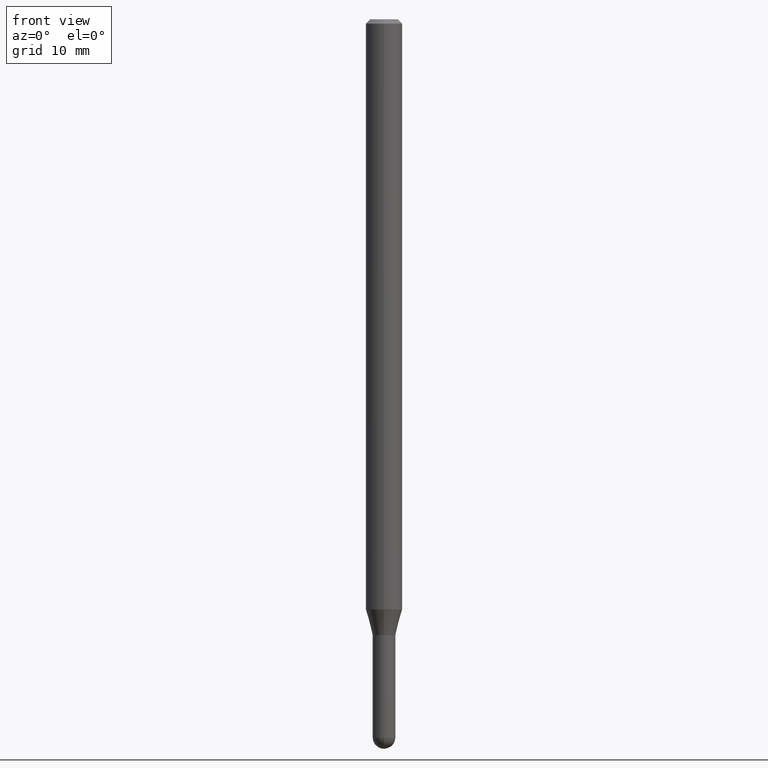
[diagram: clean part render]
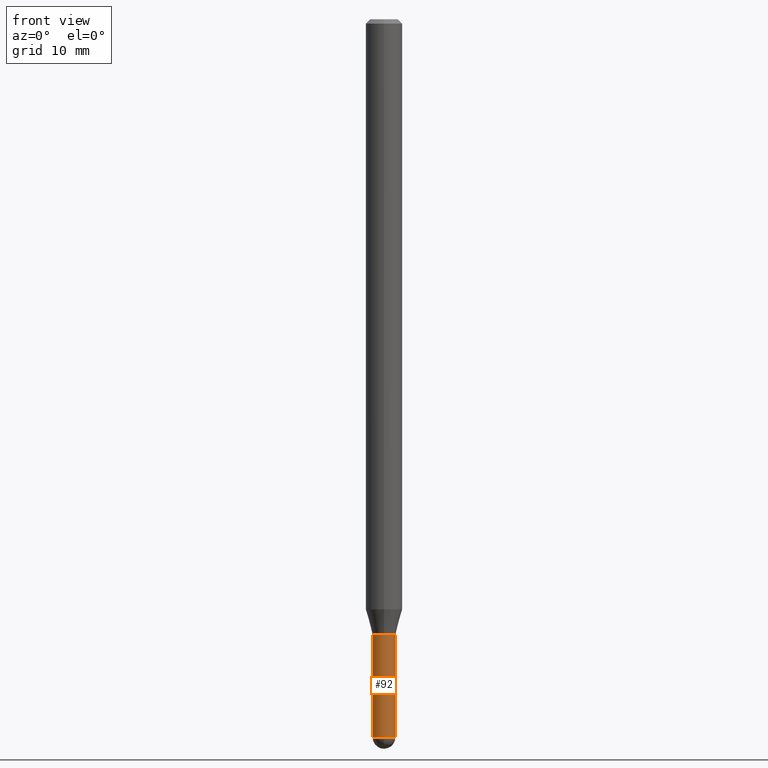
[diagram: same view with one face highlighted and labeled with its STEP entity id]
A machine part, front view. The second image highlights one B-rep face of the part: STEP entity #92.
In plain terms, the highlighted cylindrical surface (edge-blend (fillet) strip) has radius 0.9906 mm, axis along (-0, 0, 1).
Its self-contained STEP definition (entity closure, byte-faithful):
#15 = CARTESIAN_POINT ( 'NONE',  ( 0.03899999999999999994, -8.252116144355773169E-15, -2.460999999999999854 ) ) ;
#42 = VERTEX_POINT ( 'NONE', #52 ) ;
#46 = ORIENTED_EDGE ( 'NONE', *, *, #301, .T. ) ;
#52 = CARTESIAN_POINT ( 'NONE',  ( -0.03899999999999999994, -7.702668932979569039E-15, -2.110000000000000320 ) ) ;
#61 = VECTOR ( 'NONE', #285, 39.37007874015748143 ) ;
#65 = EDGE_CURVE ( 'NONE', #95, #42, #174, .T. ) ;
#67 = CARTESIAN_POINT ( 'NONE',  ( -2.771116669463784777E-16, -0.03900000000000854172, -2.460999999999999854 ) ) ;
#78 = ORIENTED_EDGE ( 'NONE', *, *, #65, .F. ) ;
#92 = ADVANCED_FACE ( 'NONE', ( #404 ), #166, .T. ) ;
#95 = VERTEX_POINT ( 'NONE', #168 ) ;
#96 = VECTOR ( 'NONE', #105, 39.37007874015748143 ) ;
#105 = DIRECTION ( 'NONE',  ( -2.445468806185136877E-29, 3.491481338843145188E-15, 1.000000000000000000 ) ) ;
#110 = AXIS2_PLACEMENT_3D ( 'NONE', #350, #147, #430 ) ;
#113 = EDGE_LOOP ( 'NONE', ( #78, #421, #244, #46, #389 ) ) ;
#127 = DIRECTION ( 'NONE',  ( 1.000000000000000000, -6.982962677686265922E-15, 4.876176775795935793E-29 ) ) ;
#136 = DIRECTION ( 'NONE',  ( 1.000000000000000000, -6.982962677686258033E-15, 0.000000000000000000 ) ) ;
#147 = DIRECTION ( 'NONE',  ( -2.445468806185136597E-29, 3.491481338843145583E-15, 1.000000000000000000 ) ) ;
#148 = CIRCLE ( 'NONE', #219, 0.03899999999999999994 ) ;
#166 = CYLINDRICAL_SURFACE ( 'NONE', #502, 0.03899999999999999994 ) ;
#168 = CARTESIAN_POINT ( 'NONE',  ( -0.03899999999999999994, -7.702668932979569039E-15, -2.460999999999999854 ) ) ;
#174 = LINE ( 'NONE', #402, #61 ) ;
#179 = CARTESIAN_POINT ( 'NONE',  ( 5.159939181050639071E-29, -7.367025624959036939E-15, -2.110000000000000320 ) ) ;
#219 = AXIS2_PLACEMENT_3D ( 'NONE', #179, #369, #136 ) ;
#244 = ORIENTED_EDGE ( 'NONE', *, *, #481, .T. ) ;
#258 = EDGE_CURVE ( 'NONE', #42, #395, #148, .T. ) ;
#267 = CARTESIAN_POINT ( 'NONE',  ( 0.03899999999999999994, -7.639361169388800962E-15, -2.110000000000000320 ) ) ;
#285 = DIRECTION ( 'NONE',  ( -2.445468806185136877E-29, 3.491481338843145188E-15, 1.000000000000000000 ) ) ;
#296 = CIRCLE ( 'NONE', #110, 0.03899999999999999994 ) ;
#301 = EDGE_CURVE ( 'NONE', #498, #395, #461, .T. ) ;
#326 = CARTESIAN_POINT ( 'NONE',  ( 0.000000000000000000, 0.000000000000000000, 0.000000000000000000 ) ) ;
#338 = AXIS2_PLACEMENT_3D ( 'NONE', #484, #419, #499 ) ;
#339 = CARTESIAN_POINT ( 'NONE',  ( 0.03899999999999999994, -2.723355444297643682E-16, 1.901708942560414931E-30 ) ) ;
#350 = CARTESIAN_POINT ( 'NONE',  ( 6.018298732021620914E-29, -8.592535574892981353E-15, -2.460999999999999854 ) ) ;
#362 = EDGE_CURVE ( 'NONE', #95, #510, #296, .T. ) ;
#369 = DIRECTION ( 'NONE',  ( -2.445468806185136597E-29, 3.491481338843145583E-15, 1.000000000000000000 ) ) ;
#389 = ORIENTED_EDGE ( 'NONE', *, *, #258, .F. ) ;
#395 = VERTEX_POINT ( 'NONE', #267 ) ;
#402 = CARTESIAN_POINT ( 'NONE',  ( -0.03899999999999999994, 2.771116669464390721E-16, -1.918384685199413078E-30 ) ) ;
#404 = FACE_OUTER_BOUND ( 'NONE', #113, .T. ) ;
#419 = DIRECTION ( 'NONE',  ( -2.445468806185136597E-29, 3.491481338843145583E-15, 1.000000000000000000 ) ) ;
#421 = ORIENTED_EDGE ( 'NONE', *, *, #362, .T. ) ;
#430 = DIRECTION ( 'NONE',  ( 1.000000000000000000, -6.982962677686283277E-15, 0.000000000000000000 ) ) ;
#448 = CIRCLE ( 'NONE', #338, 0.03899999999999999994 ) ;
#461 = LINE ( 'NONE', #339, #96 ) ;
#477 = DIRECTION ( 'NONE',  ( -2.445468806185136597E-29, 3.491481338843145583E-15, 1.000000000000000000 ) ) ;
#481 = EDGE_CURVE ( 'NONE', #510, #498, #448, .T. ) ;
#484 = CARTESIAN_POINT ( 'NONE',  ( 6.018298732021620914E-29, -8.592535574892981353E-15, -2.460999999999999854 ) ) ;
#498 = VERTEX_POINT ( 'NONE', #15 ) ;
#499 = DIRECTION ( 'NONE',  ( 1.000000000000000000, -6.982962677686283277E-15, 0.000000000000000000 ) ) ;
#502 = AXIS2_PLACEMENT_3D ( 'NONE', #326, #477, #127 ) ;
#510 = VERTEX_POINT ( 'NONE', #67 ) ;